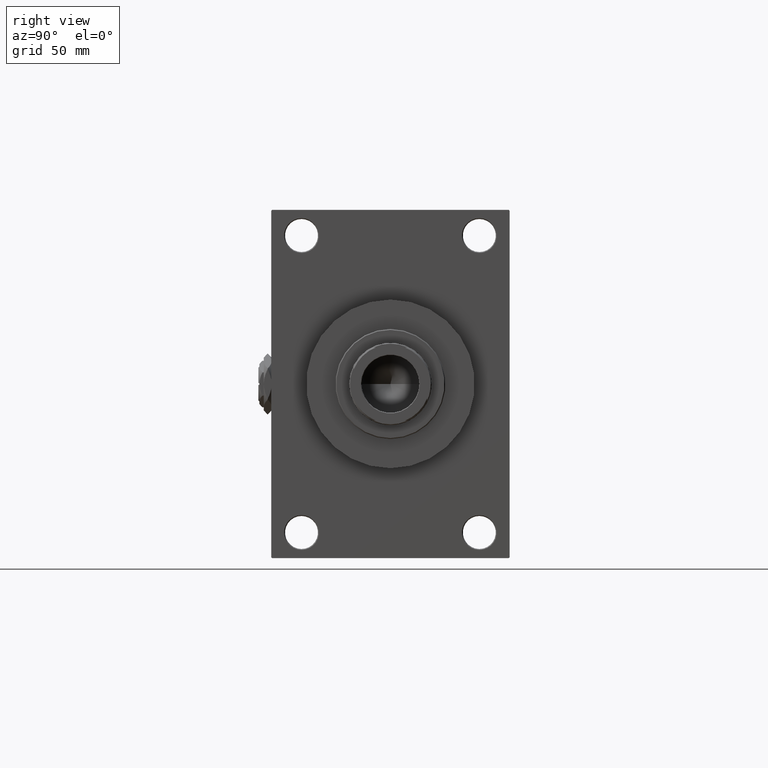
[diagram: clean part render]
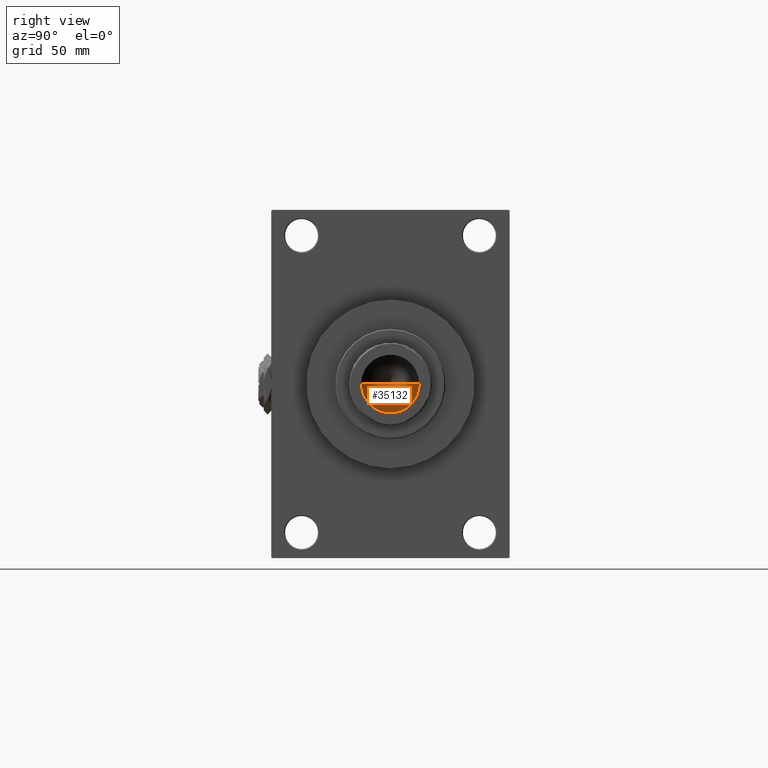
[diagram: same view with one face highlighted and labeled with its STEP entity id]
A machine part, right view. The second image highlights one B-rep face of the part: STEP entity #35132.
In plain terms, the highlighted conical surface has half-angle 59 deg.
Its self-contained STEP definition (entity closure, byte-faithful):
#4045 = CARTESIAN_POINT ( 'NONE',  ( -15.74999999999998934, 1.928818708657080161E-15, 203.0000000000000000 ) ) ;
#5760 = DIRECTION ( 'NONE',  ( -0.000000000000000000, -0.000000000000000000, 1.000000000000000000 ) ) ;
#5831 = CIRCLE ( 'NONE', #46043, 15.74999999999998934 ) ;
#7331 = DIRECTION ( 'NONE',  ( -0.8571673007021112234, 1.049727191138617340E-16, 0.5150380749100560429 ) ) ;
#11603 = CONICAL_SURFACE ( 'NONE', #48590, 15.74999999999998934, 1.029744258676652313 ) ;
#12632 = ORIENTED_EDGE ( 'NONE', *, *, #34417, .F. ) ;
#13562 = DIRECTION ( 'NONE',  ( 1.000000000000000000, 0.000000000000000000, 0.000000000000000000 ) ) ;
#13638 = CARTESIAN_POINT ( 'NONE',  ( -15.74999999999998934, 1.928818708657080161E-15, 203.0000000000000000 ) ) ;
#15193 = DIRECTION ( 'NONE',  ( 1.000000000000000000, 0.000000000000000000, 0.000000000000000000 ) ) ;
#15678 = LINE ( 'NONE', #19948, #35085 ) ;
#18479 = FACE_OUTER_BOUND ( 'NONE', #20638, .T. ) ;
#19948 = CARTESIAN_POINT ( 'NONE',  ( 15.74999999999998934, 0.000000000000000000, 203.0000000000000000 ) ) ;
#20638 = EDGE_LOOP ( 'NONE', ( #12632, #48546, #23697 ) ) ;
#21683 = VERTEX_POINT ( 'NONE', #28159 ) ;
#22438 = LINE ( 'NONE', #4045, #28478 ) ;
#23697 = ORIENTED_EDGE ( 'NONE', *, *, #27556, .T. ) ;
#24923 = VERTEX_POINT ( 'NONE', #13638 ) ;
#25260 = CARTESIAN_POINT ( 'NONE',  ( 15.74999999999998934, 0.000000000000000000, 203.0000000000000000 ) ) ;
#27556 = EDGE_CURVE ( 'NONE', #47373, #24923, #5831, .T. ) ;
#28159 = CARTESIAN_POINT ( 'NONE',  ( -1.584115414415908206E-14, 0.000000000000000000, 193.5364452503159214 ) ) ;
#28478 = VECTOR ( 'NONE', #7331, 1000.000000000000000 ) ;
#30071 = CARTESIAN_POINT ( 'NONE',  ( 0.000000000000000000, 0.000000000000000000, 203.0000000000000000 ) ) ;
#33428 = CARTESIAN_POINT ( 'NONE',  ( 0.000000000000000000, 0.000000000000000000, 203.0000000000000000 ) ) ;
#34088 = DIRECTION ( 'NONE',  ( -0.000000000000000000, -0.000000000000000000, 1.000000000000000000 ) ) ;
#34417 = EDGE_CURVE ( 'NONE', #21683, #24923, #22438, .T. ) ;
#35085 = VECTOR ( 'NONE', #35312, 1000.000000000000000 ) ;
#35132 = ADVANCED_FACE ( 'NONE', ( #18479 ), #11603, .F. ) ;
#35312 = DIRECTION ( 'NONE',  ( 0.8571673007021112234, 0.000000000000000000, 0.5150380749100560429 ) ) ;
#39292 = EDGE_CURVE ( 'NONE', #21683, #47373, #15678, .T. ) ;
#46043 = AXIS2_PLACEMENT_3D ( 'NONE', #33428, #5760, #13562 ) ;
#47373 = VERTEX_POINT ( 'NONE', #25260 ) ;
#48546 = ORIENTED_EDGE ( 'NONE', *, *, #39292, .T. ) ;
#48590 = AXIS2_PLACEMENT_3D ( 'NONE', #30071, #34088, #15193 ) ;